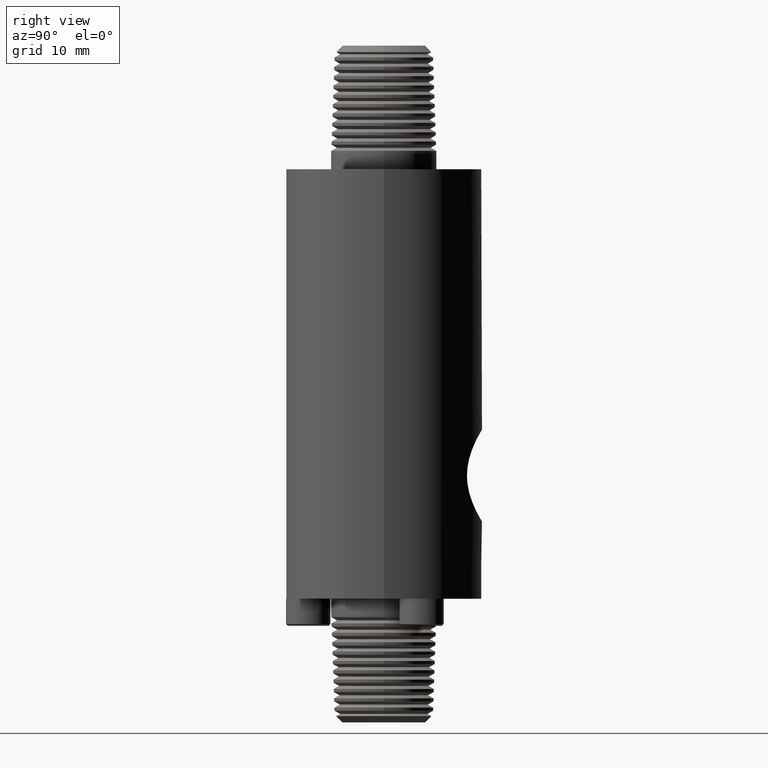
[diagram: clean part render]
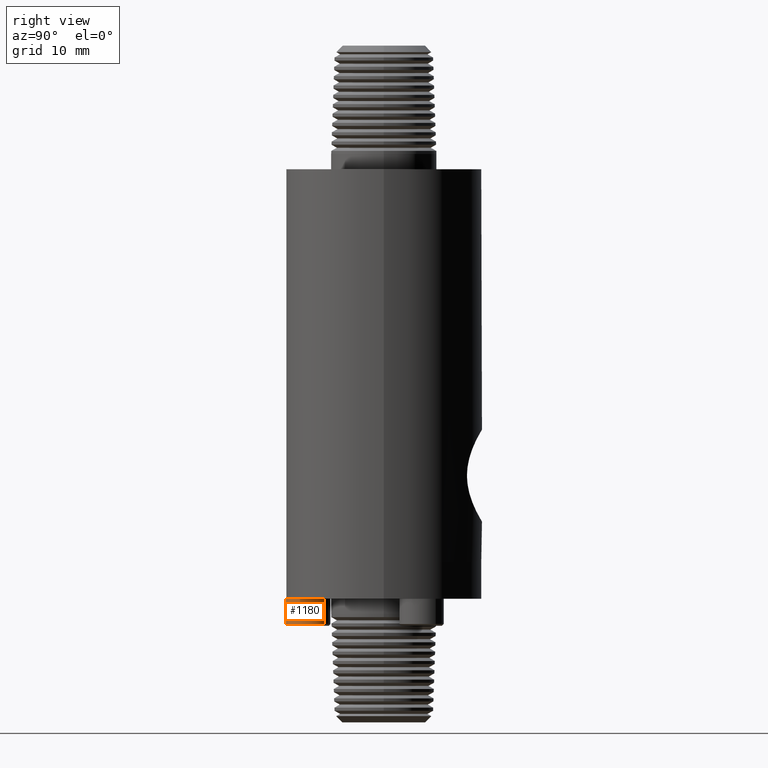
[diagram: same view with one face highlighted and labeled with its STEP entity id]
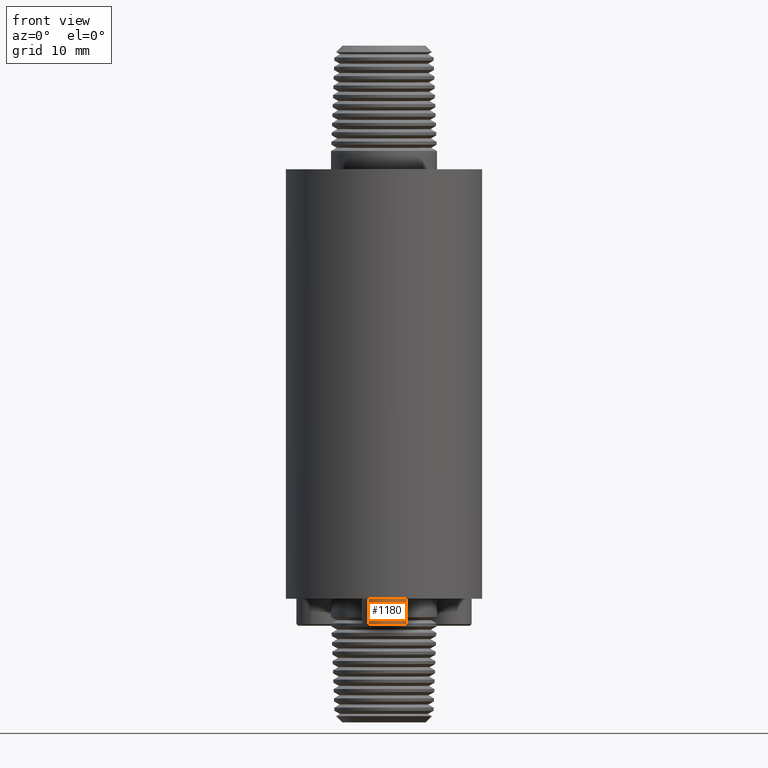
[diagram: same view with one face highlighted and labeled with its STEP entity id]
A machine part, right view. The second image highlights one B-rep face of the part: STEP entity #1180.
A second angle (front view) of the same face is appended — the face is thin or edge-on in the first view.
In plain terms, the highlighted cylindrical surface (edge-blend (fillet) strip) has radius 2.8702 mm, axis along (-0, 0, 1).
Its self-contained STEP definition (entity closure, byte-faithful):
#318 = EDGE_CURVE ( 'NONE', #3465, #3447, #4287, .T. ) ;
#378 = EDGE_CURVE ( 'NONE', #3447, #3455, #4372, .T. ) ;
#654 = CARTESIAN_POINT ( 'NONE',  ( -2.509104035652853900E-017, 9.632035316622028000E-019, -0.1129999999999996700 ) ) ;
#660 = CARTESIAN_POINT ( 'NONE',  ( -2.509104035652853900E-017, 0.1288500079251968000, -0.1129999999999996600 ) ) ;
#805 = DIRECTION ( 'NONE',  ( -1.065496844250580600E-016, -1.000000000000000000, 8.523925058957556500E-018 ) ) ;
#811 = DIRECTION ( 'NONE',  ( -2.220446049250320000E-016, 0.0000000000000000000, -1.000000000000000000 ) ) ;
#861 = CARTESIAN_POINT ( 'NONE',  ( 0.0000000000000000000, 0.1288500079251968000, 8.537024980200822600E-018 ) ) ;
#905 = CARTESIAN_POINT ( 'NONE',  ( 4.579401302819170400E-017, 0.1288500079251968000, 0.1130000000000000300 ) ) ;
#919 = CARTESIAN_POINT ( 'NONE',  ( 4.579401302819169100E-017, 9.632035316621989500E-019, 0.1130000000000000000 ) ) ;
#1180 = ADVANCED_FACE ( 'NONE', ( #4763 ), #4764, .T. ) ;
#1558 = AXIS2_PLACEMENT_3D ( 'NONE', #2469, #2593, #2460 ) ;
#1646 = AXIS2_PLACEMENT_3D ( 'NONE', #2831, #2977, #2897 ) ;
#1788 = AXIS2_PLACEMENT_3D ( 'NONE', #861, #805, #811 ) ;
#2125 = CARTESIAN_POINT ( 'NONE',  ( -2.509104035652853900E-017, 9.632035316622028000E-019, -0.1129999999999996700 ) ) ;
#2128 = DIRECTION ( 'NONE',  ( -1.065496844250580800E-016, -1.000000000000000000, 8.523925058957556500E-018 ) ) ;
#2460 = DIRECTION ( 'NONE',  ( -2.220446049250319500E-016, 8.523925058957571900E-018, -1.000000000000000000 ) ) ;
#2469 = CARTESIAN_POINT ( 'NONE',  ( 0.0000000000000000000, 0.0000000000000000000, 0.0000000000000000000 ) ) ;
#2593 = DIRECTION ( 'NONE',  ( -1.065496844250580600E-016, -1.000000000000000000, 8.523925058957556500E-018 ) ) ;
#2831 = CARTESIAN_POINT ( 'NONE',  ( 0.0000000000000000000, 0.0000000000000000000, 0.0000000000000000000 ) ) ;
#2897 = DIRECTION ( 'NONE',  ( -2.220446049250319500E-016, 8.523925058957571900E-018, -1.000000000000000000 ) ) ;
#2977 = DIRECTION ( 'NONE',  ( -1.065496844250580600E-016, -1.000000000000000000, 8.523925058957556500E-018 ) ) ;
#3439 = VERTEX_POINT ( 'NONE', #905 ) ;
#3447 = VERTEX_POINT ( 'NONE', #654 ) ;
#3455 = VERTEX_POINT ( 'NONE', #919 ) ;
#3465 = VERTEX_POINT ( 'NONE', #660 ) ;
#3958 = ORIENTED_EDGE ( 'NONE', *, *, #4079, .T. ) ;
#3980 = ORIENTED_EDGE ( 'NONE', *, *, #318, .F. ) ;
#4010 = ORIENTED_EDGE ( 'NONE', *, *, #378, .F. ) ;
#4035 = ORIENTED_EDGE ( 'NONE', *, *, #4692, .T. ) ;
#4079 = EDGE_CURVE ( 'NONE', #3465, #3439, #5115, .T. ) ;
#4107 = EDGE_LOOP ( 'NONE', ( #3958, #4035, #4010, #3980 ) ) ;
#4287 = LINE ( 'NONE', #2125, #4326 ) ;
#4326 = VECTOR ( 'NONE', #2128, 39.37007874015748100 ) ;
#4372 = CIRCLE ( 'NONE', #1558, 0.1129999999999996700 ) ;
#4692 = EDGE_CURVE ( 'NONE', #3439, #3455, #5138, .T. ) ;
#4763 = FACE_OUTER_BOUND ( 'NONE', #4107, .T. ) ;
#4764 = CYLINDRICAL_SURFACE ( 'NONE', #1646, 0.1129999999999996700 ) ;
#5115 = CIRCLE ( 'NONE', #1788, 0.1129999999999996600 ) ;
#5138 = LINE ( 'NONE', #5289, #5139 ) ;
#5139 = VECTOR ( 'NONE', #5290, 39.37007874015748100 ) ;
#5289 = CARTESIAN_POINT ( 'NONE',  ( 3.892954918689358400E-017, -9.632035316622041500E-019, 0.1129999999999996700 ) ) ;
#5290 = DIRECTION ( 'NONE',  ( -1.065496844250580800E-016, -1.000000000000000000, 8.523925058957556500E-018 ) ) ;